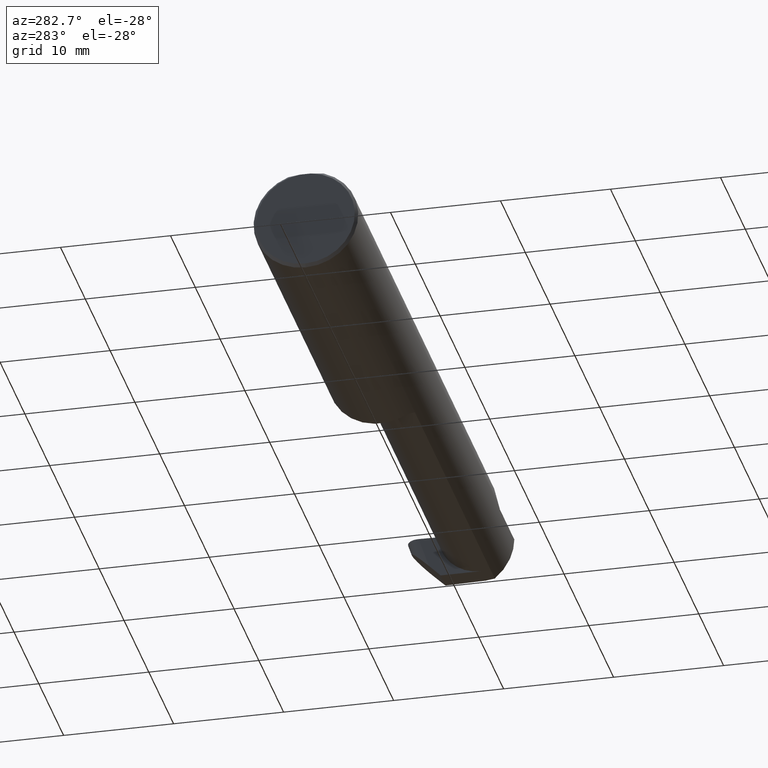
[diagram: clean part render]
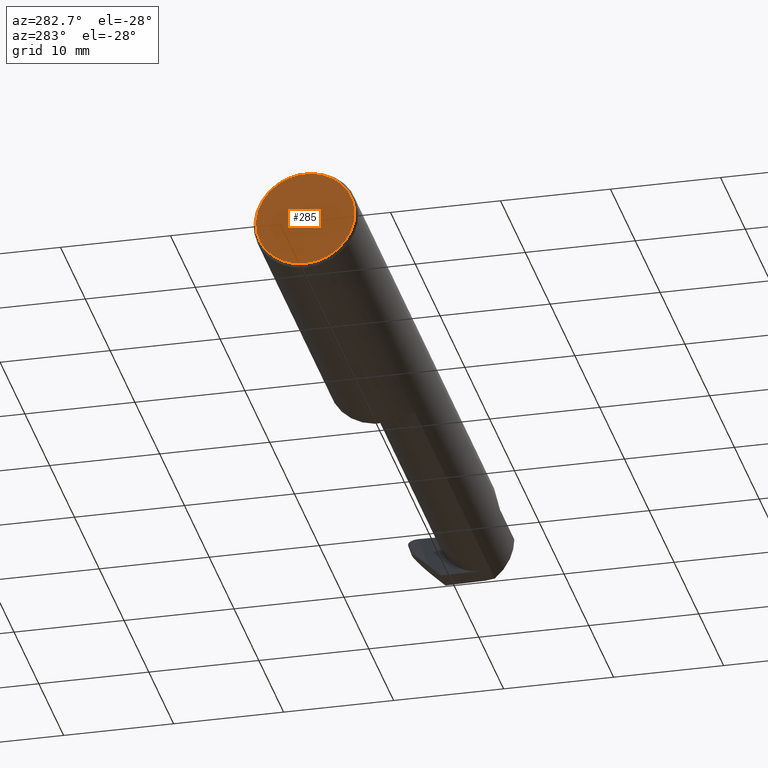
[diagram: same view with one face highlighted and labeled with its STEP entity id]
A machine part, auxiliary view. The second image highlights one B-rep face of the part: STEP entity #285.
In plain terms, the highlighted planar face has unit normal (1, 0, 0).
Its self-contained STEP definition (entity closure, byte-faithful):
#2 = DIRECTION ( 'NONE',  ( 0.000000000000000000, 0.000000000000000000, -1.000000000000000000 ) ) ;
#5 = DIRECTION ( 'NONE',  ( 1.000000000000000000, 0.000000000000000000, 0.000000000000000000 ) ) ;
#52 = PLANE ( 'NONE',  #518 ) ;
#113 = LINE ( 'NONE', #551, #335 ) ;
#159 = CARTESIAN_POINT ( 'NONE',  ( 0.000000000000000000, -0.01880691362238934641, 0.1763499999999999235 ) ) ;
#164 = AXIS2_PLACEMENT_3D ( 'NONE', #661, #166, #388 ) ;
#166 = DIRECTION ( 'NONE',  ( -1.000000000000000000, -0.000000000000000000, -0.000000000000000000 ) ) ;
#170 = CARTESIAN_POINT ( 'NONE',  ( 0.000000000000000000, 0.000000000000000000, 0.000000000000000000 ) ) ;
#229 = CARTESIAN_POINT ( 'NONE',  ( 0.000000000000000000, 0.000000000000000000, 0.000000000000000000 ) ) ;
#259 = VERTEX_POINT ( 'NONE', #501 ) ;
#279 = DIRECTION ( 'NONE',  ( -0.000000000000000000, 1.000000000000000000, -0.000000000000000000 ) ) ;
#285 = ADVANCED_FACE ( 'NONE', ( #336 ), #52, .F. ) ;
#302 = ORIENTED_EDGE ( 'NONE', *, *, #349, .T. ) ;
#331 = CARTESIAN_POINT ( 'NONE',  ( 0.000000000000000000, 0.000000000000000000, -0.1773499999999999521 ) ) ;
#335 = VECTOR ( 'NONE', #279, 39.37007874015748143 ) ;
#336 = FACE_OUTER_BOUND ( 'NONE', #544, .T. ) ;
#349 = EDGE_CURVE ( 'NONE', #666, #259, #113, .T. ) ;
#365 = EDGE_CURVE ( 'NONE', #694, #666, #679, .T. ) ;
#383 = EDGE_CURVE ( 'NONE', #259, #694, #395, .T. ) ;
#388 = DIRECTION ( 'NONE',  ( 0.000000000000000000, 0.000000000000000000, -1.000000000000000000 ) ) ;
#395 = CIRCLE ( 'NONE', #164, 0.1773499999999999521 ) ;
#416 = ORIENTED_EDGE ( 'NONE', *, *, #383, .T. ) ;
#447 = DIRECTION ( 'NONE',  ( -1.000000000000000000, -0.000000000000000000, -0.000000000000000000 ) ) ;
#495 = DIRECTION ( 'NONE',  ( 0.000000000000000000, 0.000000000000000000, -1.000000000000000000 ) ) ;
#501 = CARTESIAN_POINT ( 'NONE',  ( 0.000000000000000000, 0.01880691362238934988, 0.1763499999999999235 ) ) ;
#518 = AXIS2_PLACEMENT_3D ( 'NONE', #170, #5, #2 ) ;
#544 = EDGE_LOOP ( 'NONE', ( #302, #416, #576 ) ) ;
#551 = CARTESIAN_POINT ( 'NONE',  ( 0.000000000000000000, 0.1873499999999998500, 0.1763499999999999235 ) ) ;
#576 = ORIENTED_EDGE ( 'NONE', *, *, #365, .T. ) ;
#584 = AXIS2_PLACEMENT_3D ( 'NONE', #229, #447, #495 ) ;
#661 = CARTESIAN_POINT ( 'NONE',  ( 0.000000000000000000, 0.000000000000000000, 0.000000000000000000 ) ) ;
#666 = VERTEX_POINT ( 'NONE', #159 ) ;
#679 = CIRCLE ( 'NONE', #584, 0.1773499999999999521 ) ;
#694 = VERTEX_POINT ( 'NONE', #331 ) ;